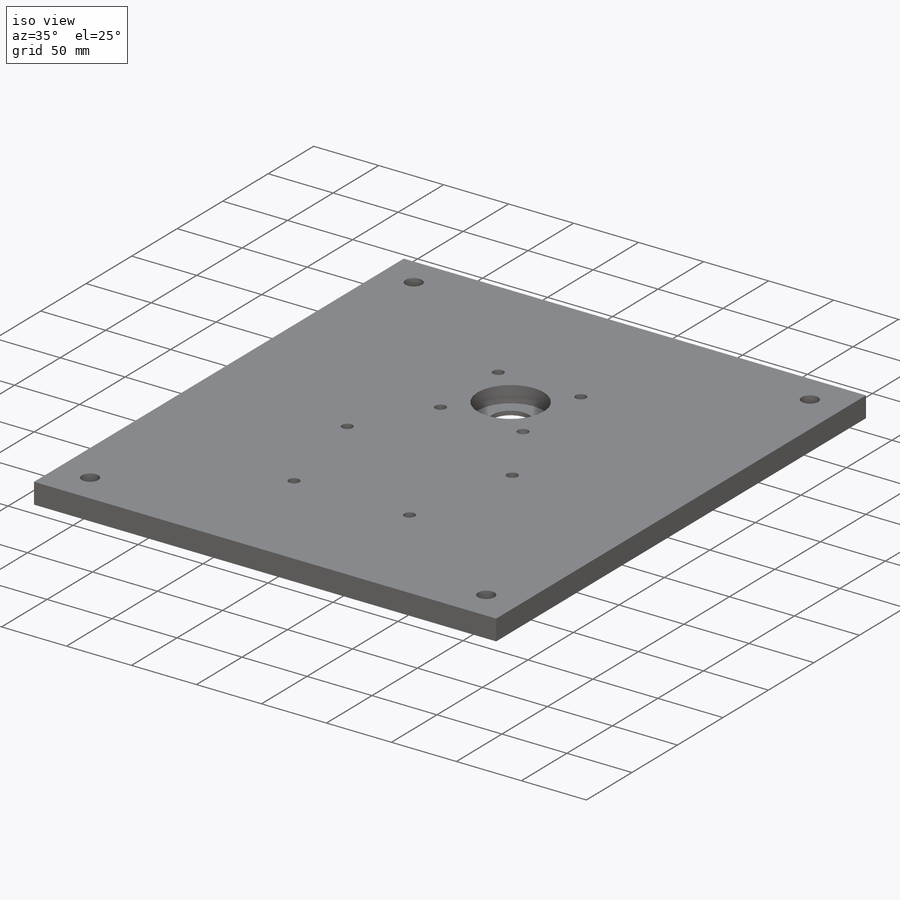
[diagram: iso view]
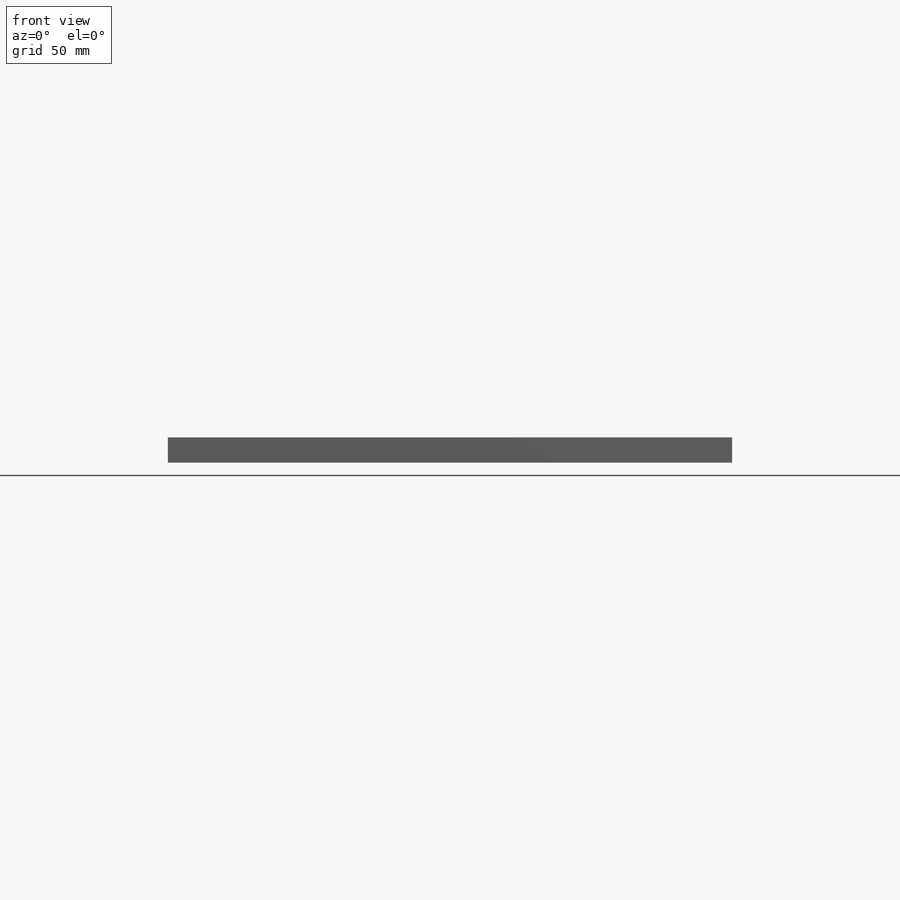
[diagram: front view]
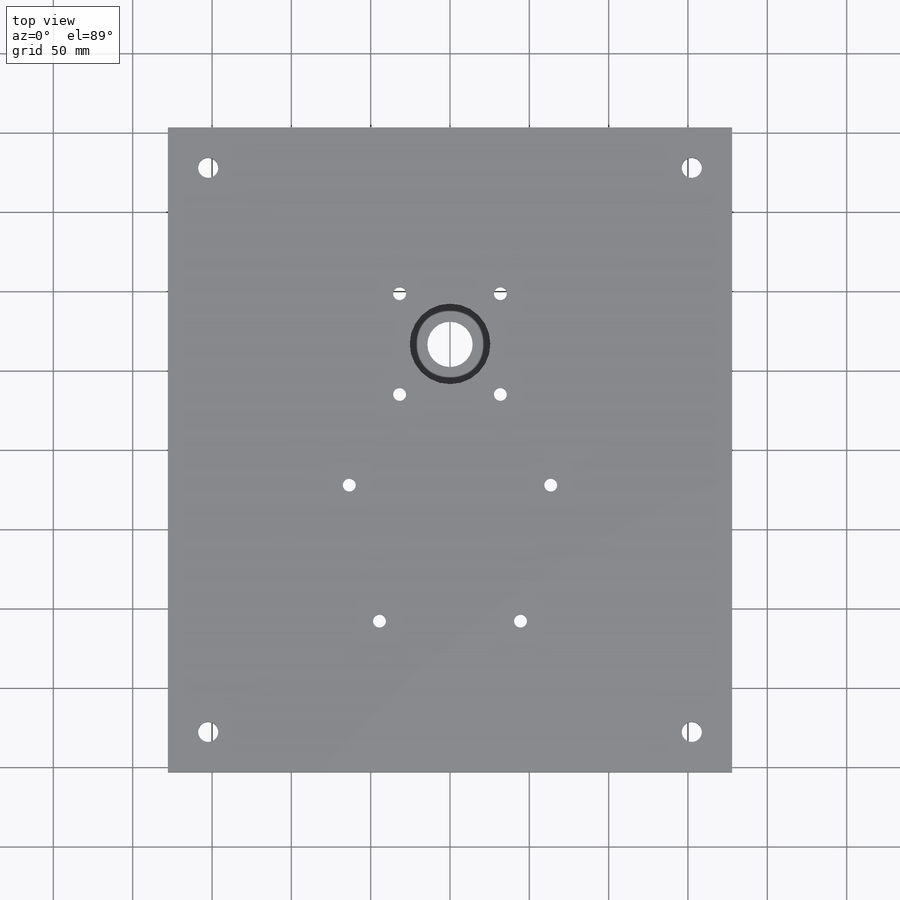
[diagram: top view]
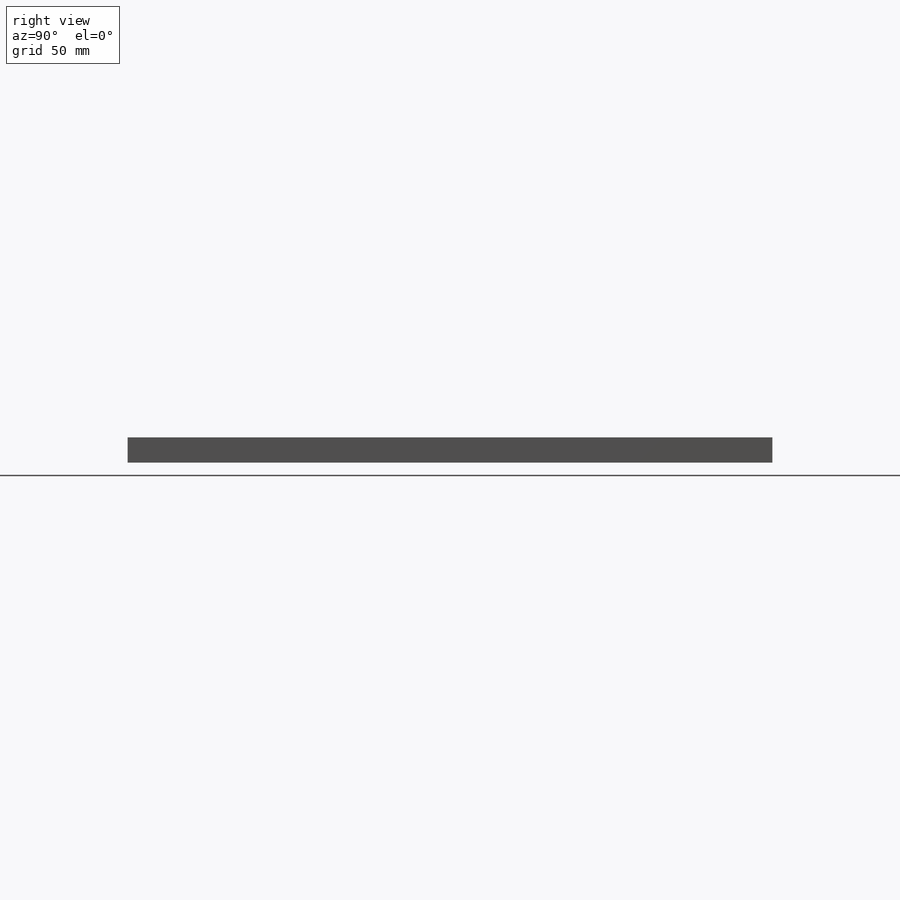
[diagram: right view]
SOLIDWORKS PART (.sldprt)
format: sldprt  version: not decoded by parser v0  size: 242,688 bytes
history: native  units: mm
features: sketch x5, cut_extrude x4, plane x2, mirror x2, material x1, extrude x1 (+12 scaffold rows collapsed)
feature tree (27):
  scaffold x12  (default folders/planes/origin — collapsed)
  material  "6061 Alloy"
  sketch  "Sketch1"  dims[D1=406.4mm D2=355.6mm]
  extrude  "Boss-Extrude1"  Depth=15.875mm
  sketch  "Sketch2"  dims[D2=12.7mm D1=25.4mm D3=25.4mm]
  cut_extrude  "Cut-Extrude1"  [1 undecoded]
  plane  "Plane1"
  plane  "Plane2"
  mirror  "Mirror1"
  mirror  "Mirror2"
  sketch  "Sketch3"  dims[c1.D1=28.575mm c1.D4=25.4mm c1.D5=8.128mm c1.D7=8.128mm c1.D2=406.4mm c2.D2=90.0deg c3.D2=101.6mm c3.D3=190.5mm c3.D6=88.9mm c4.D2=63.5mm c4.D3=133.35mm c4.D4=41.275mm c4.D8=127.0mm c4.D9=44.45mm]
  cut_extrude  "Cut-Extrude2"  [1 undecoded]
  sketch  "Sketch4"  dims[D1=50.8mm]
  cut_extrude  "Cut-Extrude3"  Depth=12.7mm
  sketch  "Sketch5"  dims[D1=12.7mm]
  cut_extrude  "Cut-Extrude4"  Depth=8.89mm
decode coverage: 8 of 12 modeling features carry decoded parameters
note: 2 parameter values undecoded
note: suppression state not decoded; provenance and decode notes live in map.json
